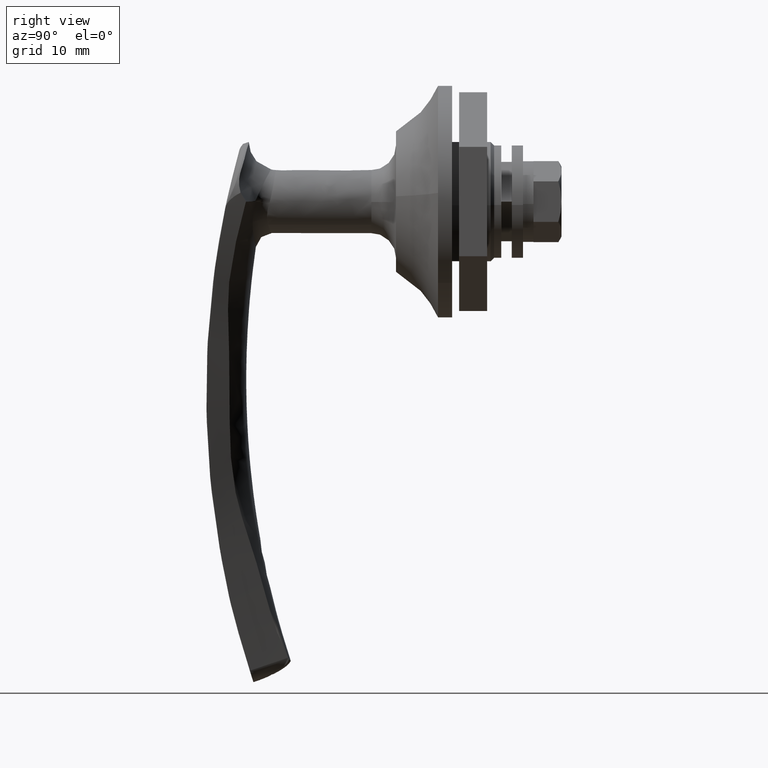
[diagram: clean part render]
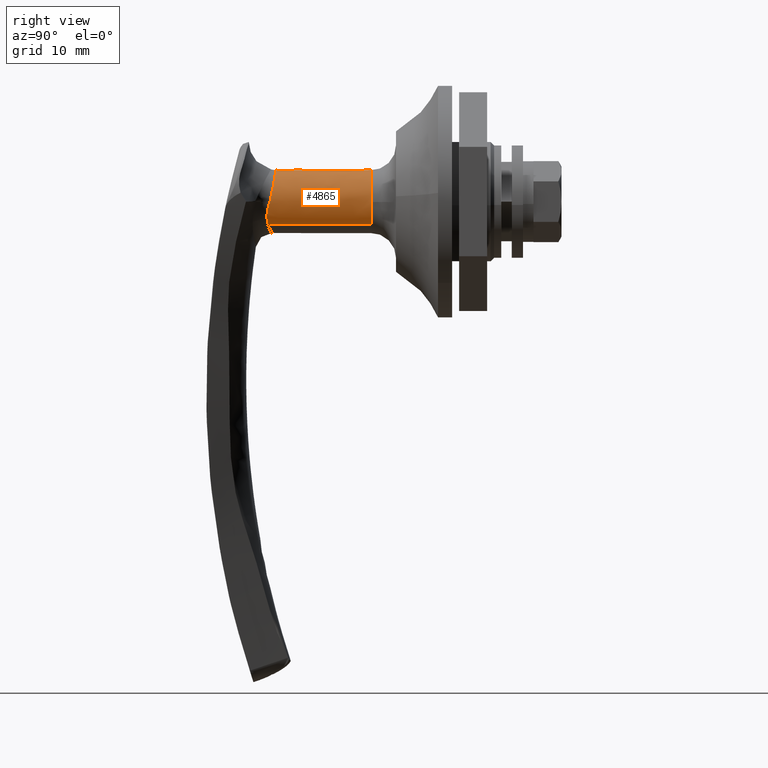
[diagram: same view with one face highlighted and labeled with its STEP entity id]
A machine part, right view. The second image highlights one B-rep face of the part: STEP entity #4865.
In plain terms, the highlighted face is a freeform B-spline surface patch.
Its self-contained STEP definition (entity closure, byte-faithful):
#4312=CARTESIAN_POINT('',(4.488036221508610,-18.063797549969550,-0.327919005895623));
#4313=VERTEX_POINT('',#4312);
#4327=CARTESIAN_POINT('',(-3.050525416837167,-17.323108778674289,3.308217396424163));
#4328=VERTEX_POINT('',#4327);
#4329=CARTESIAN_POINT('',(-3.050525416837167,-17.323108778674289,3.308217396424163));
#4330=CARTESIAN_POINT('',(-3.020301093043833,-17.319626655176911,3.336086423928751));
#4331=CARTESIAN_POINT('',(-2.989665339537817,-17.316141672063829,3.363568235909431));
#4332=CARTESIAN_POINT('',(-2.899641544462827,-17.305920382139650,3.442121160081077));
#4333=CARTESIAN_POINT('',(-2.839180712462834,-17.299078855815679,3.492168961619681));
#4334=CARTESIAN_POINT('',(-2.715282449578780,-17.284564247215769,3.589349867830579));
#4335=CARTESIAN_POINT('',(-2.651846964306018,-17.276887190436391,3.636461698427004));
#4336=CARTESIAN_POINT('',(-2.523492985297982,-17.260340360141239,3.726678046013897));
#4337=CARTESIAN_POINT('',(-2.458399880730740,-17.251448898704840,3.769924184014184));
#4338=CARTESIAN_POINT('',(-2.326473687585749,-17.231971105683058,3.852736511158363));
#4339=CARTESIAN_POINT('',(-2.259654270024459,-17.221267201777788,3.892295595806902));
#4340=CARTESIAN_POINT('',(-2.056546081638505,-17.187333303905930,4.005577286470679));
#4341=CARTESIAN_POINT('',(-1.917584641377256,-17.162625900471099,4.073957217566782));
#4342=CARTESIAN_POINT('',(-1.702858652833766,-17.129822299496009,4.166093153296974));
#4343=CARTESIAN_POINT('',(-1.630233137734108,-17.119588774790639,4.195058458023230));
#4344=CARTESIAN_POINT('',(-1.482687949596243,-17.101652604538739,4.249448455184678));
#4345=CARTESIAN_POINT('',(-1.408087258386635,-17.094001904669181,4.274740421673105));
#4346=CARTESIAN_POINT('',(-1.183906762530632,-17.076575585749900,4.344288789602858));
#4347=CARTESIAN_POINT('',(-1.033140932723234,-17.072223046676239,4.382535397483747));
#4348=CARTESIAN_POINT('',(-0.805249914735549,-17.081104428914390,4.428043340125357));
#4349=CARTESIAN_POINT('',(-0.729001667499103,-17.086815658647730,4.441231309495605));
#4350=CARTESIAN_POINT('',(-0.575921213000466,-17.103231175112679,4.463663735972496));
#4351=CARTESIAN_POINT('',(-0.499081463653352,-17.113716525262021,4.472910452622442));
#4352=CARTESIAN_POINT('',(-0.344650013191904,-17.135115687522550,4.487452151772933));
#4353=CARTESIAN_POINT('',(-0.267060306275314,-17.146080152932200,4.492747894767604));
#4354=CARTESIAN_POINT('',(-0.149919475260882,-17.157873351951991,4.497671297705618));
#4355=CARTESIAN_POINT('',(-0.110853145664750,-17.160987805785830,4.498802708599536));
#4356=CARTESIAN_POINT('',(-0.032925166162177,-17.164424280578359,4.500047808318234));
#4357=CARTESIAN_POINT('',(0.005960580726807,-17.164610647790020,4.500162876402027));
#4358=CARTESIAN_POINT('',(0.122361884497302,-17.160091562924691,4.499005006491262));
#4359=CARTESIAN_POINT('',(0.199665316411162,-17.151285790464140,4.496233328540109));
#4360=CARTESIAN_POINT('',(0.354088479534065,-17.131272769973510,4.486713937278700));
#4361=CARTESIAN_POINT('',(0.431197727565336,-17.120026120418469,4.479956996600792));
#4362=CARTESIAN_POINT('',(0.584481286118087,-17.100537472214182,4.462547256739248));
#4363=CARTESIAN_POINT('',(0.660767546629527,-17.092226304936350,4.451888767749860));
#4364=CARTESIAN_POINT('',(0.812709930836384,-17.081416779107101,4.426672580743917));
#4365=CARTESIAN_POINT('',(0.888366321581199,-17.078935790501738,4.412113889647566));
#4366=CARTESIAN_POINT('',(1.114341889169591,-17.078548008340420,4.362571029632354));
#4367=CARTESIAN_POINT('',(1.263669470722989,-17.087665945487579,4.321734097265258));
#4368=CARTESIAN_POINT('',(1.559390187269371,-17.116913636228720,4.224044127079556));
#4369=CARTESIAN_POINT('',(1.702887446876607,-17.136729824553431,4.168162265962950));
#4370=CARTESIAN_POINT('',(1.982034052793507,-17.178617243485409,4.042888040354795));
#4371=CARTESIAN_POINT('',(2.117755391695358,-17.200694159473510,3.973466437869855));
#4372=CARTESIAN_POINT('',(2.382280787294335,-17.240082845939320,3.820741027418341));
#4373=CARTESIAN_POINT('',(2.511124157134563,-17.256931458585200,3.737393649084416));
#4374=CARTESIAN_POINT('',(2.761473539528857,-17.287359112070831,3.556419545057897));
#4375=CARTESIAN_POINT('',(2.883454895180989,-17.301106133638289,3.458269183784592));
#4376=CARTESIAN_POINT('',(3.114170849961712,-17.328240185786491,3.252057504550630));
#4377=CARTESIAN_POINT('',(3.223524468359843,-17.341691375021700,3.143636864370388));
#4378=CARTESIAN_POINT('',(3.430250667028537,-17.371606807811052,2.916666462666957));
#4379=CARTESIAN_POINT('',(3.527619404191807,-17.388120053944998,2.798120499785038));
#4380=CARTESIAN_POINT('',(3.664514132870679,-17.417498103110649,2.612896975121059));
#4381=CARTESIAN_POINT('',(3.708618662223314,-17.428040567490971,2.549918451991254));
#4382=CARTESIAN_POINT('',(3.793736581537782,-17.450709079504950,2.421466350153415));
#4383=CARTESIAN_POINT('',(3.834867074725946,-17.462874628704160,2.355785066222311));
#4384=CARTESIAN_POINT('',(3.952389308904285,-17.501199522034661,2.156926731453205));
#4385=CARTESIAN_POINT('',(4.023102037948689,-17.529195078513599,2.021796092164863));
#4386=CARTESIAN_POINT('',(4.150117917848050,-17.587837003538940,1.746290562584904));
#4387=CARTESIAN_POINT('',(4.206422638946581,-17.618408373237049,1.605900423589678));
#4388=CARTESIAN_POINT('',(4.304819032934601,-17.680697768899151,1.319636564010216));
#4389=CARTESIAN_POINT('',(4.346901074551938,-17.712558435886841,1.173789167907662));
#4390=CARTESIAN_POINT('',(4.399090645247824,-17.760769484594640,0.950701952317263));
#4391=CARTESIAN_POINT('',(4.414644781876439,-17.776926529449060,0.875626581368941));
#4392=CARTESIAN_POINT('',(4.441767762124181,-17.809264633197628,0.725609797338367));
#4393=CARTESIAN_POINT('',(4.453384119686755,-17.825489053864331,0.650477895594486));
#4394=CARTESIAN_POINT('',(4.482468525233384,-17.874812051252800,0.424831242982996));
#4395=CARTESIAN_POINT('',(4.494175488221742,-17.908552721975092,0.274063985450089));
#4396=CARTESIAN_POINT('',(4.500374897351340,-17.963026960331870,0.048030602785770));
#4397=CARTESIAN_POINT('',(4.500547445888474,-17.981879857442792,-0.027282229915866));
#4398=CARTESIAN_POINT('',(4.497972543160095,-18.011142631695130,-0.140217468319439));
#4399=CARTESIAN_POINT('',(4.496642486207091,-18.021057047317960,-0.177857730050152));
#4400=CARTESIAN_POINT('',(4.493022931711083,-18.040395736478771,-0.253321804228319));
#4401=CARTESIAN_POINT('',(4.490744552173640,-18.051057032762689,-0.290851678142655));
#4402=CARTESIAN_POINT('',(4.488036221508610,-18.063797549969550,-0.327919005895623));
#4403=B_SPLINE_CURVE_WITH_KNOTS('',3,(#4329,#4330,#4331,#4332,#4333,#4334,#4335,#4336,#4337,#4338,#4339,#4340,#4341,#4342,#4343,#4344,#4345,#4346,#4347,#4348,#4349,#4350,#4351,#4352,#4353,#4354,#4355,#4356,#4357,#4358,#4359,#4360,#4361,#4362,#4363,#4364,#4365,#4366,#4367,#4368,#4369,#4370,#4371,#4372,#4373,#4374,#4375,#4376,#4377,#4378,#4379,#4380,#4381,#4382,#4383,#4384,#4385,#4386,#4387,#4388,#4389,#4390,#4391,#4392,#4393,#4394,#4395,#4396,#4397,#4398,#4399,#4400,#4401,#4402),.UNSPECIFIED.,.F.,.U.,(4,2,2,2,2,2,2,2,2,2,2,2,2,2,2,2,2,2,2,2,2,2,2,2,2,2,2,2,2,2,2,2,2,2,2,2,4),(0.273024883992227,0.281249999999999,0.296874999999999,0.312499999999999,0.328124999999999,0.343749999999999,0.374999999999999,0.390624999999999,0.406249999999999,0.437499999999999,0.453124999999999,0.468749999999999,0.484374999999999,0.492187499999999,0.499999999999999,0.515624999999999,0.531249999999999,0.546874999999999,0.562499999999999,0.593750000000000,0.625000000000000,0.656250000000000,0.687500000000000,0.718750000000000,0.750000000000000,0.781250000000000,0.796875000000000,0.812500000000000,0.843750000000000,0.875000000000000,0.906250000000000,0.921875000000000,0.937500000000000,0.968750000000000,0.984375000000000,0.992187500000000,1.0),.UNSPECIFIED.);
#4404=EDGE_CURVE('',#4328,#4313,#4403,.T.);
#4695=CARTESIAN_POINT('',(3.050520580413131,-18.212433941161880,-3.308220937456194));
#4696=VERTEX_POINT('',#4695);
#4748=CARTESIAN_POINT('',(4.488036221508610,-18.063797549969550,-0.327919005895623));
#4749=CARTESIAN_POINT('',(4.483128695732012,-18.086883508633029,-0.395085415771712));
#4750=CARTESIAN_POINT('',(4.476680941826446,-18.109002672680759,-0.462604752041804));
#4751=CARTESIAN_POINT('',(4.460558925620202,-18.151155947842231,-0.598405742932895));
#4752=CARTESIAN_POINT('',(4.450856185710303,-18.171235547830609,-0.666855174091618));
#4753=CARTESIAN_POINT('',(4.416833832740142,-18.227770785250929,-0.872264645629300));
#4754=CARTESIAN_POINT('',(4.387824690250104,-18.260244558873431,-1.008193655623272));
#4755=CARTESIAN_POINT('',(4.316951439685012,-18.314342973491669,-1.278041510715382));
#4756=CARTESIAN_POINT('',(4.275087930398760,-18.335964547231740,-1.411961060302724));
#4757=CARTESIAN_POINT('',(4.202243581338149,-18.359982226961382,-1.611257631400457));
#4758=CARTESIAN_POINT('',(4.176284546747009,-18.366586361535202,-1.677425088826593));
#4759=CARTESIAN_POINT('',(4.120908174545651,-18.376958209341570,-1.809205154136782));
#4760=CARTESIAN_POINT('',(4.091421543770880,-18.380728213786540,-1.874955778540433));
#4761=CARTESIAN_POINT('',(4.029306209638553,-18.385389290537979,-2.004964043557427));
#4762=CARTESIAN_POINT('',(3.996601615431000,-18.386284579665041,-2.069375406421865));
#4763=CARTESIAN_POINT('',(3.928652587094034,-18.385347889999249,-2.195638363029768));
#4764=CARTESIAN_POINT('',(3.893360486410971,-18.383525632899481,-2.257605568172073));
#4765=CARTESIAN_POINT('',(3.783634746577198,-18.374336458829191,-2.440136442693560));
#4766=CARTESIAN_POINT('',(3.705362403429678,-18.363247093349219,-2.557337393941126));
#4767=CARTESIAN_POINT('',(3.538847186654823,-18.332935320543001,-2.783207777727755));
#4768=CARTESIAN_POINT('',(3.450603713131905,-18.313711618085911,-2.891876590581918));
#4769=CARTESIAN_POINT('',(3.310710464117590,-18.280131064380900,-3.048622506491486));
#4770=CARTESIAN_POINT('',(3.262822132357749,-18.268146950256469,-3.099826365974432));
#4771=CARTESIAN_POINT('',(3.164490993315910,-18.242828156810450,-3.200145067741175));
#4772=CARTESIAN_POINT('',(3.113931914093195,-18.229462602134110,-3.249366705022696));
#4773=CARTESIAN_POINT('',(3.058405732771050,-18.214554455023599,-3.300936478909976));
#4774=CARTESIAN_POINT('',(3.054465651576281,-18.213495423360332,-3.304582863065470));
#4775=CARTESIAN_POINT('',(3.050520580413131,-18.212433941161880,-3.308220937456194));
#4776=B_SPLINE_CURVE_WITH_KNOTS('',3,(#4748,#4749,#4750,#4751,#4752,#4753,#4754,#4755,#4756,#4757,#4758,#4759,#4760,#4761,#4762,#4763,#4764,#4765,#4766,#4767,#4768,#4769,#4770,#4771,#4772,#4773,#4774,#4775),.UNSPECIFIED.,.F.,.U.,(4,2,2,2,2,2,2,2,2,2,2,2,2,4),(0.0,0.015625000000000,0.031250000000000,0.062500000000000,0.093750000000000,0.109375000000000,0.125000000000000,0.140625000000000,0.156250000000000,0.187500000000000,0.218750000000000,0.234375000000000,0.249999999999999,0.251191792434124),.UNSPECIFIED.);
#4777=EDGE_CURVE('',#4313,#4696,#4776,.T.);
#4784=CARTESIAN_POINT('',(3.050520461183913,-3.127906382542739,-3.308220808213860));
#4785=CARTESIAN_POINT('',(6.358741269397773,-3.127906382542739,-0.257700347029947));
#4786=CARTESIAN_POINT('',(3.308220808213860,-3.127906382542739,3.050520461183913));
#4787=CARTESIAN_POINT('',(0.257700347029947,-3.127906382542739,6.358741269397773));
#4788=CARTESIAN_POINT('',(-3.050520461183913,-3.127906382542739,3.308220808213860));
#4789=CARTESIAN_POINT('',(3.050520461183913,-18.765140649815240,-3.308220808213860));
#4790=CARTESIAN_POINT('',(6.358741269397773,-18.765140649815233,-0.257700347029947));
#4791=CARTESIAN_POINT('',(3.308220808213860,-18.765140649815240,3.050520461183913));
#4792=CARTESIAN_POINT('',(0.257700347029947,-18.765140649815233,6.358741269397773));
#4793=CARTESIAN_POINT('',(-3.050520461183913,-18.765140649815240,3.308220808213860));
#4801=(BOUNDED_SURFACE()B_SPLINE_SURFACE(2,1,((#4784,#4789),(#4785,#4790),(#4786,#4791),(#4787,#4792),(#4788,#4793)),.UNSPECIFIED.,.F.,.F.,.U.)B_SPLINE_SURFACE_WITH_KNOTS((3,2,3),(2,2),(0.0,7.455844122715875,14.911688245431749),(0.0,15.637234267272500),.UNSPECIFIED.)GEOMETRIC_REPRESENTATION_ITEM()RATIONAL_B_SPLINE_SURFACE(((1.0,1.0),(0.707106781186548,0.707106781186548),(1.0,1.0),(0.707106781186548,0.707106781186548),(1.0,1.0)))REPRESENTATION_ITEM('')SURFACE());
#4802=CARTESIAN_POINT('',(3.050519617117534,-3.499999999927255,-3.308221586529625));
#4803=VERTEX_POINT('',#4802);
#4804=CARTESIAN_POINT('',(4.499644698916201,-3.499999999848451,-0.056547179556197));
#4805=VERTEX_POINT('',#4804);
#4806=CARTESIAN_POINT('',(3.050519617117533,-3.499999999927255,-3.308221586529625));
#4807=CARTESIAN_POINT('',(4.475291187011934,-3.499999999881169,-1.994436064552750));
#4808=CARTESIAN_POINT('',(4.499644698916201,-3.499999999848451,-0.056547179556197));
#4816=(BOUNDED_CURVE()B_SPLINE_CURVE(2,(#4806,#4807,#4808),.UNSPECIFIED.,.F.,.U.)B_SPLINE_CURVE_WITH_KNOTS((3,3),(0.618887426800669,0.747784295918558),.UNSPECIFIED.)CURVE()GEOMETRIC_REPRESENTATION_ITEM()RATIONAL_B_SPLINE_CURVE((0.853903583577370,0.846519004650444,0.994854295636716))REPRESENTATION_ITEM(''));
#4817=EDGE_CURVE('',#4803,#4805,#4816,.T.);
#4818=ORIENTED_EDGE('',*,*,#4817,.T.);
#4819=CARTESIAN_POINT('',(0.0,-3.500000000000000,4.500000000000001));
#4820=VERTEX_POINT('',#4819);
#4821=CARTESIAN_POINT('',(4.499644698916201,-3.499999999848451,-0.056547179556197));
#4822=CARTESIAN_POINT('',(4.500000000000047,-3.499999999848921,-0.028274706004064));
#4823=CARTESIAN_POINT('',(4.500000000000048,-3.499999999849397,8.049011E-016));
#4824=CARTESIAN_POINT('',(4.500000000000074,-3.499999999925171,4.500000000000052));
#4825=CARTESIAN_POINT('',(0.0,-3.500000000000000,4.500000000000001));
#4833=(BOUNDED_CURVE()B_SPLINE_CURVE(2,(#4821,#4822,#4823,#4824,#4825),.UNSPECIFIED.,.F.,.U.)B_SPLINE_CURVE_WITH_KNOTS((3,2,3),(0.747784295918558,0.750000000000000,1.0),.UNSPECIFIED.)CURVE()GEOMETRIC_REPRESENTATION_ITEM()RATIONAL_B_SPLINE_CURVE((0.994854295636716,0.997404141198593,1.0,0.707106781186548,1.0))REPRESENTATION_ITEM(''));
#4834=EDGE_CURVE('',#4805,#4820,#4833,.T.);
#4835=ORIENTED_EDGE('',*,*,#4834,.T.);
#4836=CARTESIAN_POINT('',(-3.050519674551708,-3.499999999924657,3.308221533569435));
#4837=VERTEX_POINT('',#4836);
#4838=CARTESIAN_POINT('',(0.0,-3.500000000000000,4.500000000000001));
#4839=CARTESIAN_POINT('',(-1.758062124193780,-3.499999999968393,4.499999999999999));
#4840=CARTESIAN_POINT('',(-3.050519674551708,-3.499999999924657,3.308221533569435));
#4848=(BOUNDED_CURVE()B_SPLINE_CURVE(2,(#4838,#4839,#4840),.UNSPECIFIED.,.F.,.U.)B_SPLINE_CURVE_WITH_KNOTS((3,3),(0.0,0.118887429421322),.UNSPECIFIED.)CURVE()GEOMETRIC_REPRESENTATION_ITEM()RATIONAL_B_SPLINE_CURVE((1.0,0.860714712481327,0.853903583277093))REPRESENTATION_ITEM(''));
#4849=EDGE_CURVE('',#4820,#4837,#4848,.T.);
#4850=ORIENTED_EDGE('',*,*,#4849,.T.);
#4851=CARTESIAN_POINT('',(-3.050519674551708,-3.499999999924657,3.308221533569435));
#4852=CARTESIAN_POINT('',(-3.050525416837167,-17.323108778674289,3.308217396424163));
#4853=QUASI_UNIFORM_CURVE('',1,(#4851,#4852),.UNSPECIFIED.,.F.,.U.);
#4854=EDGE_CURVE('',#4837,#4328,#4853,.T.);
#4855=ORIENTED_EDGE('',*,*,#4854,.T.);
#4856=ORIENTED_EDGE('',*,*,#4404,.T.);
#4857=ORIENTED_EDGE('',*,*,#4777,.T.);
#4858=CARTESIAN_POINT('',(3.050519617117534,-3.499999999927255,-3.308221586529625));
#4859=CARTESIAN_POINT('',(3.050520580413131,-18.212433941161880,-3.308220937456194));
#4860=QUASI_UNIFORM_CURVE('',1,(#4858,#4859),.UNSPECIFIED.,.F.,.U.);
#4861=EDGE_CURVE('',#4803,#4696,#4860,.T.);
#4862=ORIENTED_EDGE('',*,*,#4861,.F.);
#4863=EDGE_LOOP('',(#4818,#4835,#4850,#4855,#4856,#4857,#4862));
#4864=FACE_OUTER_BOUND('',#4863,.T.);
#4865=ADVANCED_FACE('',(#4864),#4801,.T.);